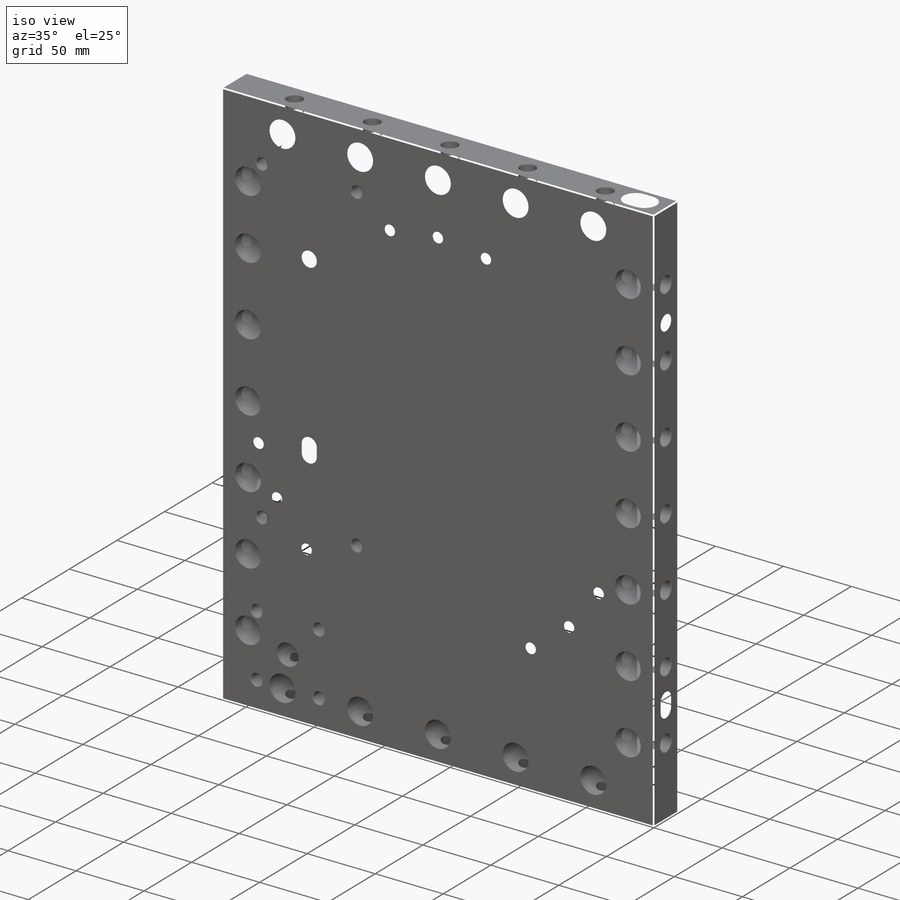
[diagram: iso view]
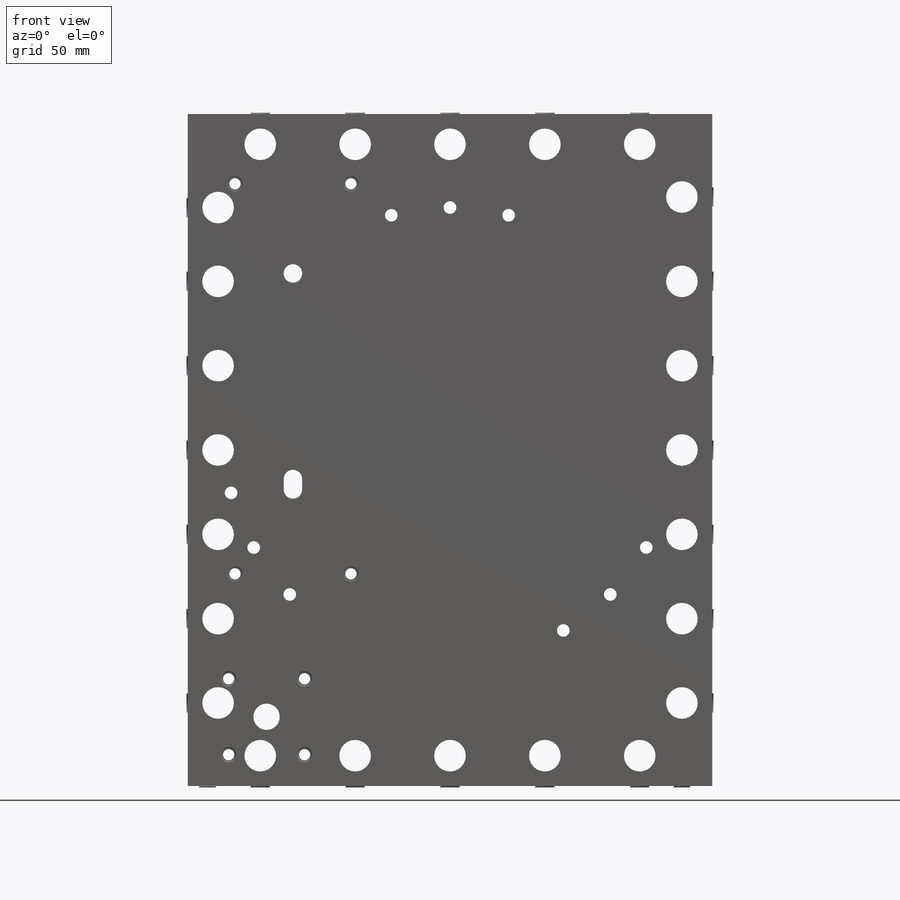
[diagram: front view]
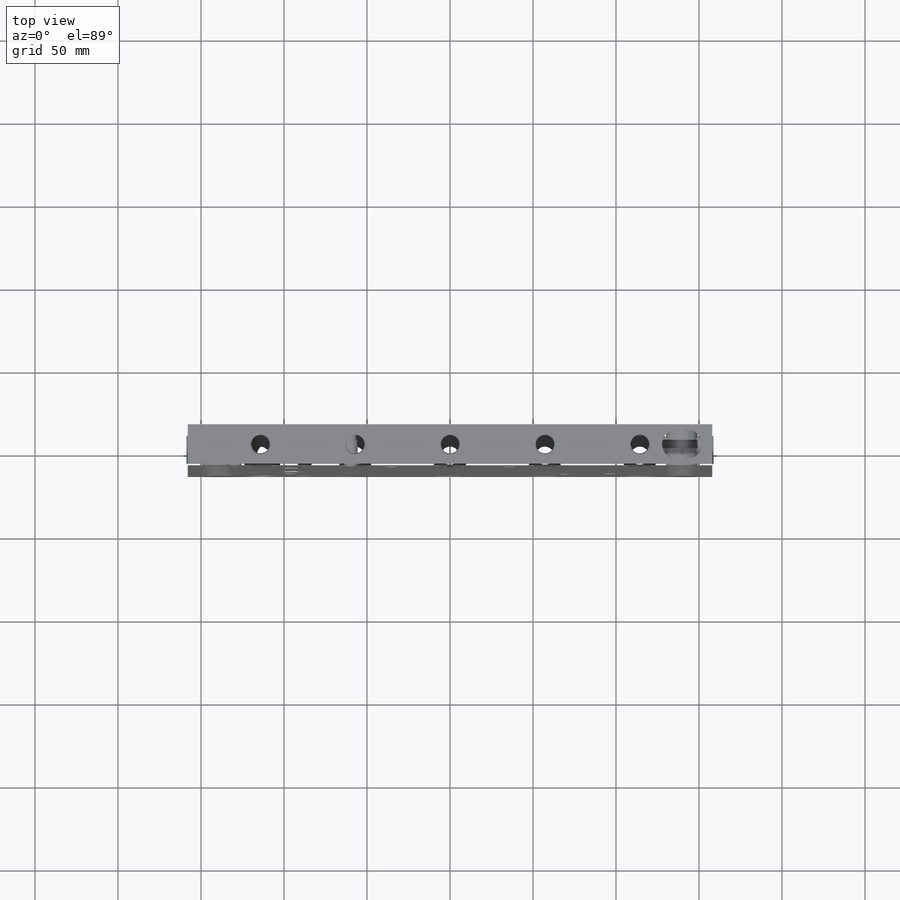
[diagram: top view]
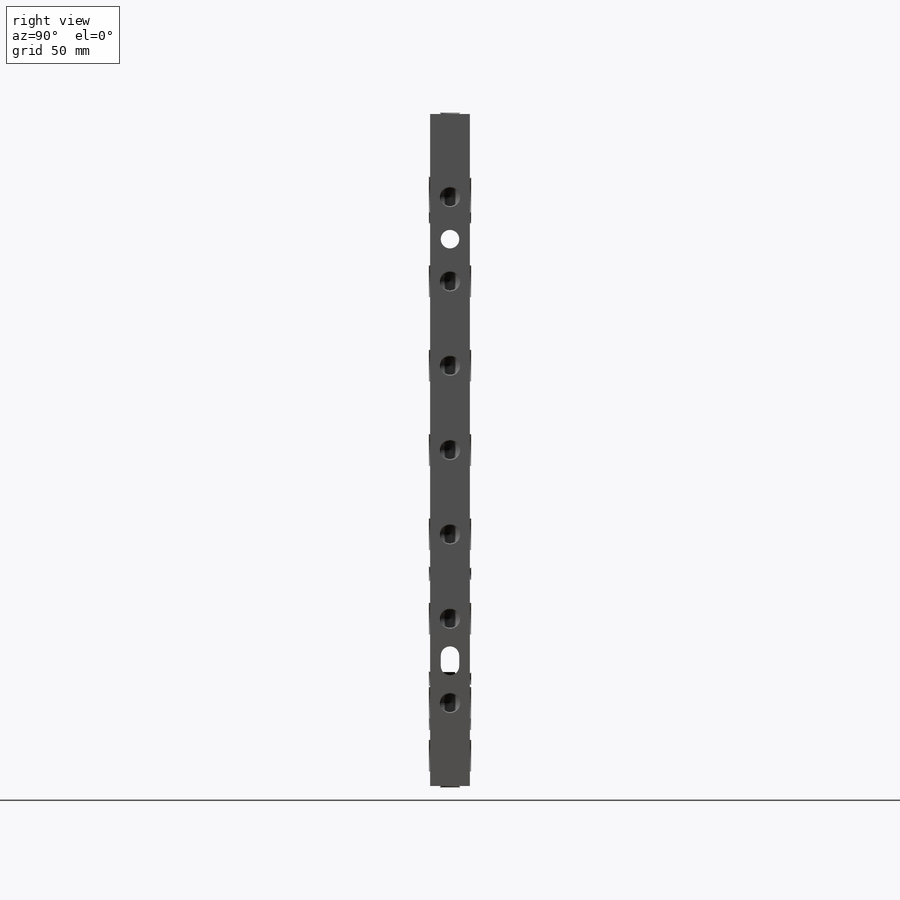
[diagram: right view]
SOLIDWORKS PART (.sldprt)
format: sldprt  version: not decoded by parser v0  size: 1,436,160 bytes
history: native  units: mm
features: sketch x34, hole x14, cut_extrude x4, chamfer x4, pattern_linear x2, material x1, extrude x1, mirror x1, plane x1, cut_revolve x1, fillet x1 (+14 scaffold rows collapsed)
feature tree (78):
  scaffold x14  (default folders/planes/origin — collapsed)
  material  "6061-T6 Al"
  sketch  "Sketch2"  dims[D1=317.5mm D2=406.4mm]
  extrude  "Extrude1"  Depth=25.4mm
  hole  "3/4 (0.75) Diameter Hole1"  Diameter=19.05mm Depth=25.4mm
  sketch  "Sketch4"  dims[D1=19.05mm]
  sketch  "Sketch3"  dims[hole-wizard template sketch: 61 standard entries collapsed; hole parameters above]
  hole  "7/16 (0.4375) Diameter Hole4"  Diameter=11.1125mm Depth=34.925mm
  sketch  "Sketch6"
  sketch  "Sketch5"  dims[hole-wizard template sketch: 46 standard entries collapsed; hole parameters above]
  pattern_linear  "LPattern3"  Count1=4 Count2=4 Spacing1=50.8mm Spacing2=50.8mm
  hole  "3/4 (0.75) Diameter Hole2"  Diameter=19.05mm Depth=25.4mm
  sketch  "Sketch11"  dims[D1=19.05mm]
  sketch  "Sketch10"  dims[hole-wizard template sketch: 61 standard entries collapsed; hole parameters above]
  hole  "7/16 (0.4375) Diameter Hole1"  Diameter=11.1125mm Depth=34.925mm
  sketch  "Sketch13"
  sketch  "Sketch12"  dims[hole-wizard template sketch: 46 standard entries collapsed; hole parameters above]
  pattern_linear  "LPattern4"  Count1=3 Count2=3 Spacing1=57.15mm Spacing2=57.15mm
  hole  "H.Actuator - 1/4-20 Helicoil"  Diameter=6.7564mm Depth=25.4mm
  sketch  "Sketch18"  dims[D1=234.95mm D2=69.85mm D3=29.21mm D4=~42.864173mm]
  sketch  "Sketch17"  dims[hole-wizard template sketch: 44 standard entries collapsed; hole parameters kept: c12.Thread Depth=15.7226mm c12.Near C'Sink Dia.=9.144mm c12.D6=~4.399409mm c12.Near C'Sink Angle=120.0deg c12.Far C'Sink Dia.=7.62mm c12.D8=~2.963249mm c12.Far C'Sink Angle=82.0deg]
  hole  "Pos. Sensor - 1/4-20 Helicoil"  Diameter=6.7564mm Depth=25.4mm
  sketch  "Sketch26"  dims[D1=45.72mm D2=45.72mm D3=19.625mm D4=25.4mm]
  sketch  "Sketch25"  dims[hole-wizard template sketch: 44 standard entries collapsed; hole parameters kept: c12.Thread Depth=15.7226mm c12.Near C'Sink Dia.=9.144mm c12.D6=~4.399409mm c12.Near C'Sink Angle=82.0deg c12.Far C'Sink Dia.=7.62mm c12.D8=~2.963249mm c12.Far C'Sink Angle=82.0deg]
  sketch  "Sketch47"  dims[D1=15.875mm]
  cut_extrude  "Cut-Extrude4"  [1 undecoded]
  hole  "3/4 (0.75) Diameter Hole3"  Diameter=19.05mm Depth=25.4mm
  sketch  "Sketch20"  dims[c1.D1=38.1mm c1.D2=63.5mm c1.D3=57.15mm c2.D1=44.45mm c2.D3=50.8mm c2.D4=58.42mm]
  sketch  "Sketch19"  dims[hole-wizard template sketch: 61 standard entries collapsed; hole parameters above]
  hole  "7/16 (0.4375) Diameter Hole2"  Diameter=11.1125mm Depth=34.925mm
  sketch  "Sketch22"
  sketch  "Sketch21"  dims[hole-wizard template sketch: 46 standard entries collapsed; hole parameters above]
  hole  "7/16 (0.4375) Diameter Hole3"  Diameter=11.1125mm Depth=34.925mm
  sketch  "Sketch28"
  sketch  "Sketch27"  dims[hole-wizard template sketch: 46 standard entries collapsed; hole parameters above]
  hole  "3/8 (0.375) Pin Hole1"  Diameter=9.525mm Depth=19.05mm
  sketch  "Sketch36"  dims[D1=19.05mm D2=12.7mm]
  sketch  "Sketch35"  dims[hole-wizard template sketch: 35 standard entries collapsed; hole parameters above]
  hole  "3/8 (0.376) Pin Locate1"  Diameter=9.5504mm Depth=19.05mm
  sketch  "Sketch38"
  sketch  "Sketch37"  dims[hole-wizard template sketch: 46 standard entries collapsed; hole parameters above]
  sketch  "Sketch40"  dims[D1=6.35mm D2=2.54mm D3=4.7752mm]
  cut_extrude  "Slot Locate1"  Depth=19.05mm
  chamfer  "Chamfer1"  Distance=0.762mm Angle=45deg
  sketch  "Sketch48"  dims[c1.D4=~20.397484mm c1.D1=9.5504mm c1.D3=6.35mm c2.D4=127.0mm c2.D1=2.54mm c2.D2=4.7752mm]
  cut_extrude  "Slot Locate2"  [1 undecoded]
  hole  "3/8 (0.376) Pin Locate2"  Diameter=9.5504mm Depth=25.4mm
  sketch  "Sketch54"
  sketch  "Sketch53"  dims[hole-wizard template sketch: 54 standard entries collapsed; hole parameters kept: c17.Thru Hole Dia.=9.5504mm c17.Thru Hole Depth=25.4mm c17.Near C'Sink Dia.=11.176mm c17.D4=~3.666174mm c17.Near C'Sink Angle=82.0deg]
  chamfer  "Chamfer2"  Distance=0.762mm Angle=45deg
  hole  "1/8 (0.125) Diameter Hole1"  Diameter=3.175mm Depth=9.525mm
  sketch  "Sketch46"  dims[D1=2.54mm]
  sketch  "Sketch45"  dims[hole-wizard template sketch: 47 standard entries collapsed; hole parameters kept: c15.Hole Depth=9.525mm c15.D3=~14.816244mm c15.Drill Angle=118.0deg]
  mirror  "Mirror1"
  hole  "Tapped Hole for 1/4-20 Helicoil1"  Diameter=6.7564mm Depth=25.4mm
  sketch  "Sketch32"  dims[c1.D1=136.525mm c2.D1=120.0deg c2.D2=136.525mm c3.D2=120.0deg c4.D2=136.525mm c5.D2=30.0deg c5.D3=136.525mm c5.D4=212.725mm c5.D5=158.75mm c5.D6=136.525mm c6.D6=90.0deg c6.D2=~118.234118mm c7.D2=30.0deg]
  sketch  "Sketch31"  dims[hole-wizard template sketch: 44 standard entries collapsed; hole parameters kept: c12.Thread Depth=15.7226mm c12.Near C'Sink Dia.=9.144mm c12.D6=~4.399409mm c12.Near C'Sink Angle=120.0deg c12.Far C'Sink Dia.=7.62mm c12.D8=~2.963249mm c12.Far C'Sink Angle=82.0deg]
  plane  "Plane1"
  sketch  "Sketch49"  dims[D2=76.2mm D1=12.7mm]
  cut_revolve  "Cut-Revolve1"  Angle=360deg
  fillet  "Fillet1"  Radius=6.35mm
  sketch  "Sketch50"  dims[c1.D4=~20.397484mm c1.D1=9.5504mm c1.D3=6.35mm c2.D4=127.0mm c2.D3=6.35mm c3.D4=139.7mm c3.D1=2.54mm c3.D2=4.7752mm c4.D1=6.3627mm c4.D2=6.3627mm]
  cut_extrude  "Slot Locate3"  Depth=19.05mm
  chamfer  "Chamfer3"  Distance=2.54mm Angle=45deg
  chamfer  "Chamfer4"  Distance=0.762mm Angle=45deg
decode coverage: 53 of 62 modeling features carry decoded parameters
note: ~ marks probable driven/reference dimensions
note: 2 parameter values undecoded
summary: Diameter pulled from absorbed wizard sketch
note: suppression state not decoded; provenance and decode notes live in map.json
